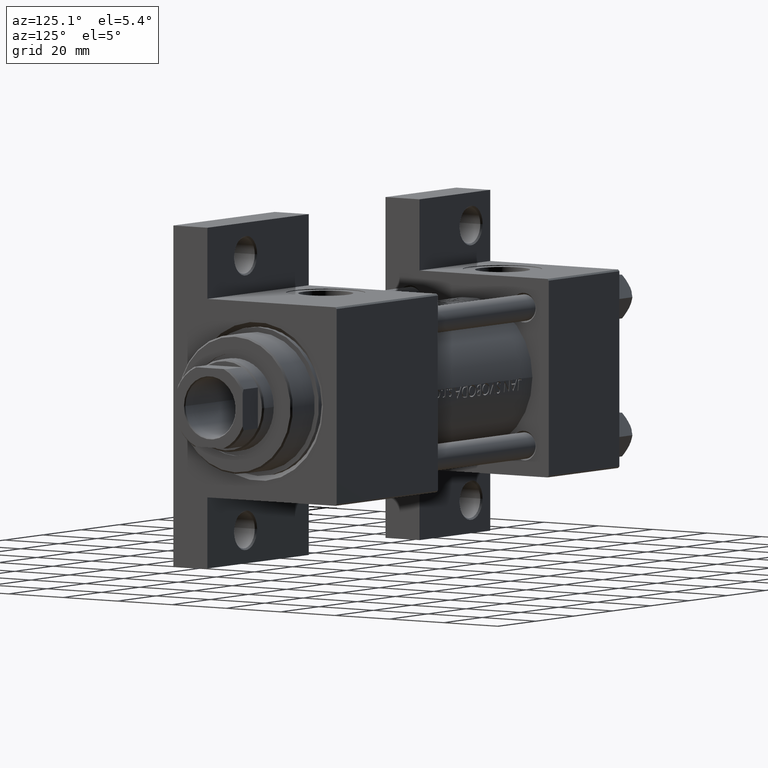
[diagram: clean part render]
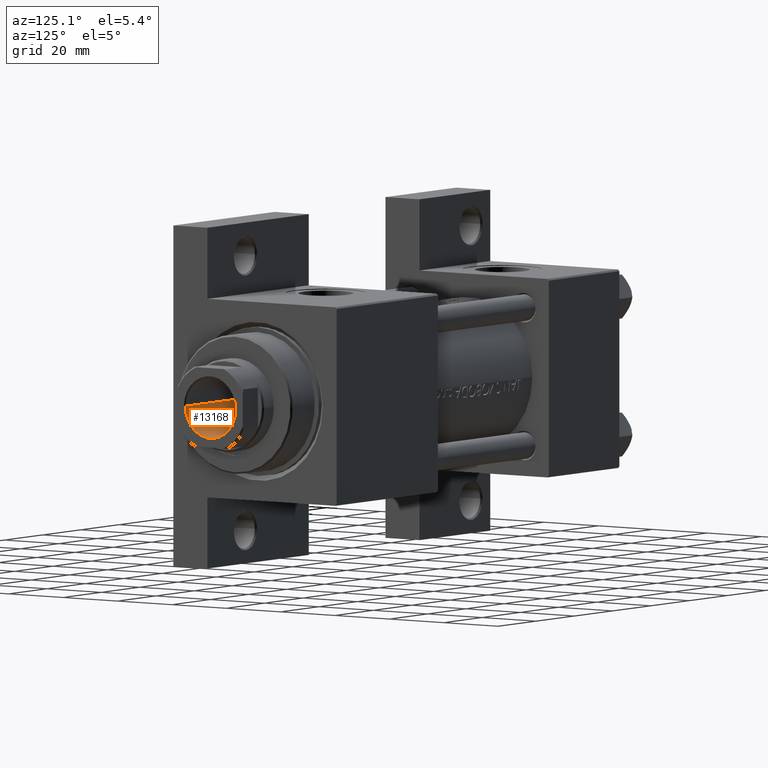
[diagram: same view with one face highlighted and labeled with its STEP entity id]
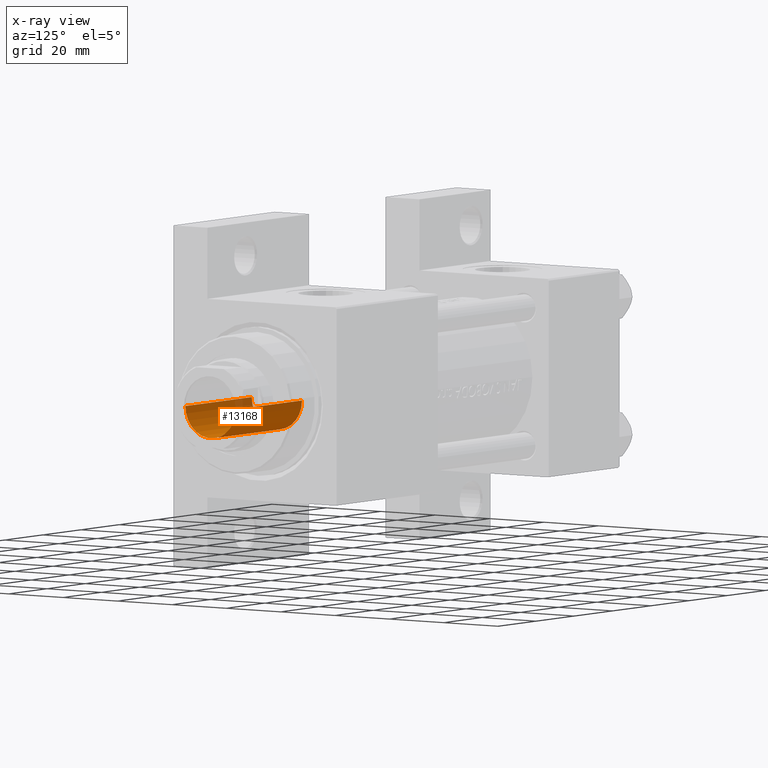
[diagram: x-ray of the same camera — body ghosted, the highlighted face saturated]
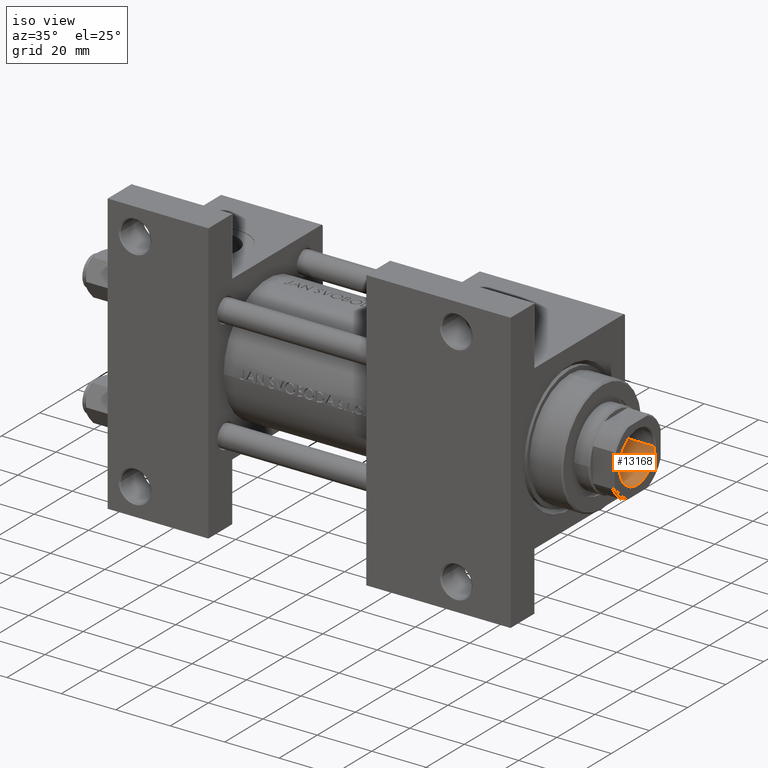
[diagram: same view with one face highlighted and labeled with its STEP entity id]
A machine part, auxiliary view. The second image highlights one B-rep face of the part: STEP entity #13168.
The next image is the same camera in x-ray: the body ghosted, the highlighted face saturated — about 5% of this face is hidden behind the body in this view.
A second angle (iso view) of the same face is appended — the face is thin or edge-on in the first view.
In plain terms, the highlighted cylindrical surface (edge-blend (fillet) strip) has radius 9.25 mm, axis along (1, 0, 0).
Its self-contained STEP definition (entity closure, byte-faithful):
#866 = ORIENTED_EDGE ( 'NONE', *, *, #20076, .F. ) ;
#1859 = CARTESIAN_POINT ( 'NONE',  ( -9.249999999999994671, 1.132798289211300909E-15, 136.0000000000000000 ) ) ;
#2735 = EDGE_LOOP ( 'NONE', ( #46839, #866, #11700, #16677 ) ) ;
#3695 = FACE_OUTER_BOUND ( 'NONE', #2735, .T. ) ;
#4541 = AXIS2_PLACEMENT_3D ( 'NONE', #6296, #35425, #31339 ) ;
#4813 = AXIS2_PLACEMENT_3D ( 'NONE', #34919, #38745, #45976 ) ;
#6296 = CARTESIAN_POINT ( 'NONE',  ( 0.000000000000000000, 0.000000000000000000, 101.0000000000000000 ) ) ;
#10991 = EDGE_CURVE ( 'NONE', #41847, #34557, #15929, .T. ) ;
#11700 = ORIENTED_EDGE ( 'NONE', *, *, #10991, .T. ) ;
#12309 = CARTESIAN_POINT ( 'NONE',  ( 9.249999999999994671, 0.000000000000000000, 136.0000000000000000 ) ) ;
#13168 = ADVANCED_FACE ( 'NONE', ( #3695 ), #26077, .F. ) ;
#15929 = LINE ( 'NONE', #12309, #19020 ) ;
#16395 = CARTESIAN_POINT ( 'NONE',  ( -9.249999999999992895, 1.132798289211300712E-15, 101.0000000000000000 ) ) ;
#16563 = DIRECTION ( 'NONE',  ( -0.000000000000000000, -0.000000000000000000, 1.000000000000000000 ) ) ;
#16677 = ORIENTED_EDGE ( 'NONE', *, *, #45870, .T. ) ;
#19020 = VECTOR ( 'NONE', #19287, 1000.000000000000000 ) ;
#19287 = DIRECTION ( 'NONE',  ( -0.000000000000000000, -0.000000000000000000, 1.000000000000000000 ) ) ;
#20076 = EDGE_CURVE ( 'NONE', #41847, #26078, #21424, .T. ) ;
#21424 = CIRCLE ( 'NONE', #4541, 9.249999999999992895 ) ;
#22135 = AXIS2_PLACEMENT_3D ( 'NONE', #28968, #40729, #25609 ) ;
#25564 = EDGE_CURVE ( 'NONE', #26078, #45013, #32154, .T. ) ;
#25609 = DIRECTION ( 'NONE',  ( 1.000000000000000000, 0.000000000000000000, 0.000000000000000000 ) ) ;
#26077 = CYLINDRICAL_SURFACE ( 'NONE', #22135, 9.249999999999994671 ) ;
#26078 = VERTEX_POINT ( 'NONE', #16395 ) ;
#26328 = CIRCLE ( 'NONE', #4813, 9.249999999999994671 ) ;
#28968 = CARTESIAN_POINT ( 'NONE',  ( 0.000000000000000000, 0.000000000000000000, 136.0000000000000000 ) ) ;
#31339 = DIRECTION ( 'NONE',  ( 1.000000000000000000, 0.000000000000000000, 0.000000000000000000 ) ) ;
#32154 = LINE ( 'NONE', #1859, #36993 ) ;
#34557 = VERTEX_POINT ( 'NONE', #38277 ) ;
#34919 = CARTESIAN_POINT ( 'NONE',  ( 0.000000000000000000, 0.000000000000000000, 135.7000000000000455 ) ) ;
#35425 = DIRECTION ( 'NONE',  ( -0.000000000000000000, -0.000000000000000000, 1.000000000000000000 ) ) ;
#36993 = VECTOR ( 'NONE', #16563, 1000.000000000000000 ) ;
#38277 = CARTESIAN_POINT ( 'NONE',  ( 9.249999999999994671, 0.000000000000000000, 135.7000000000000455 ) ) ;
#38673 = CARTESIAN_POINT ( 'NONE',  ( -9.249999999999994671, 1.132798289211300909E-15, 135.7000000000000455 ) ) ;
#38745 = DIRECTION ( 'NONE',  ( 0.000000000000000000, 0.000000000000000000, 1.000000000000000000 ) ) ;
#39485 = CARTESIAN_POINT ( 'NONE',  ( 9.249999999999992895, 0.000000000000000000, 101.0000000000000000 ) ) ;
#40729 = DIRECTION ( 'NONE',  ( -0.000000000000000000, -0.000000000000000000, 1.000000000000000000 ) ) ;
#41847 = VERTEX_POINT ( 'NONE', #39485 ) ;
#45013 = VERTEX_POINT ( 'NONE', #38673 ) ;
#45870 = EDGE_CURVE ( 'NONE', #34557, #45013, #26328, .T. ) ;
#45976 = DIRECTION ( 'NONE',  ( 1.000000000000000000, 0.000000000000000000, 0.000000000000000000 ) ) ;
#46839 = ORIENTED_EDGE ( 'NONE', *, *, #25564, .F. ) ;